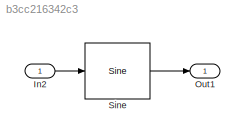
MODEL slx_b3cc216342c3
KIND model
CONFIG AbsTol = auto
CONFIG EnableMultiTasking = on
CONFIG FixedStep = 0.200000
CONFIG MaxStep = auto
CONFIG MinStep = auto
CONFIG RelTol = 1e-3
CONFIG SampleTimeConstraint = Unconstrained
CONFIG Solver = FixedStepDiscrete
CONFIG SolverName = FixedStepDiscrete
CONFIG StartTime = 0.0
CONFIG StopTime = 10.0
BLOCK [Inport] In2
  IconDisplay = Port number
  PortDimensions = 6
BLOCK [Outport] Out1
  IconDisplay = Port number
BLOCK [Reference] Sine  REF=simulink/Lookup
Tables/Sine
  Ports = [1, 1]
  SourceBlock = simulink/Lookup\nTables/Sine
  SourceProductBaseCode = SL
  SourceProductName = Simulink
  SourceType = Sine and Cosine
LINE In2:1 -> Sine:1
LINE Sine:1 -> Out1:1
